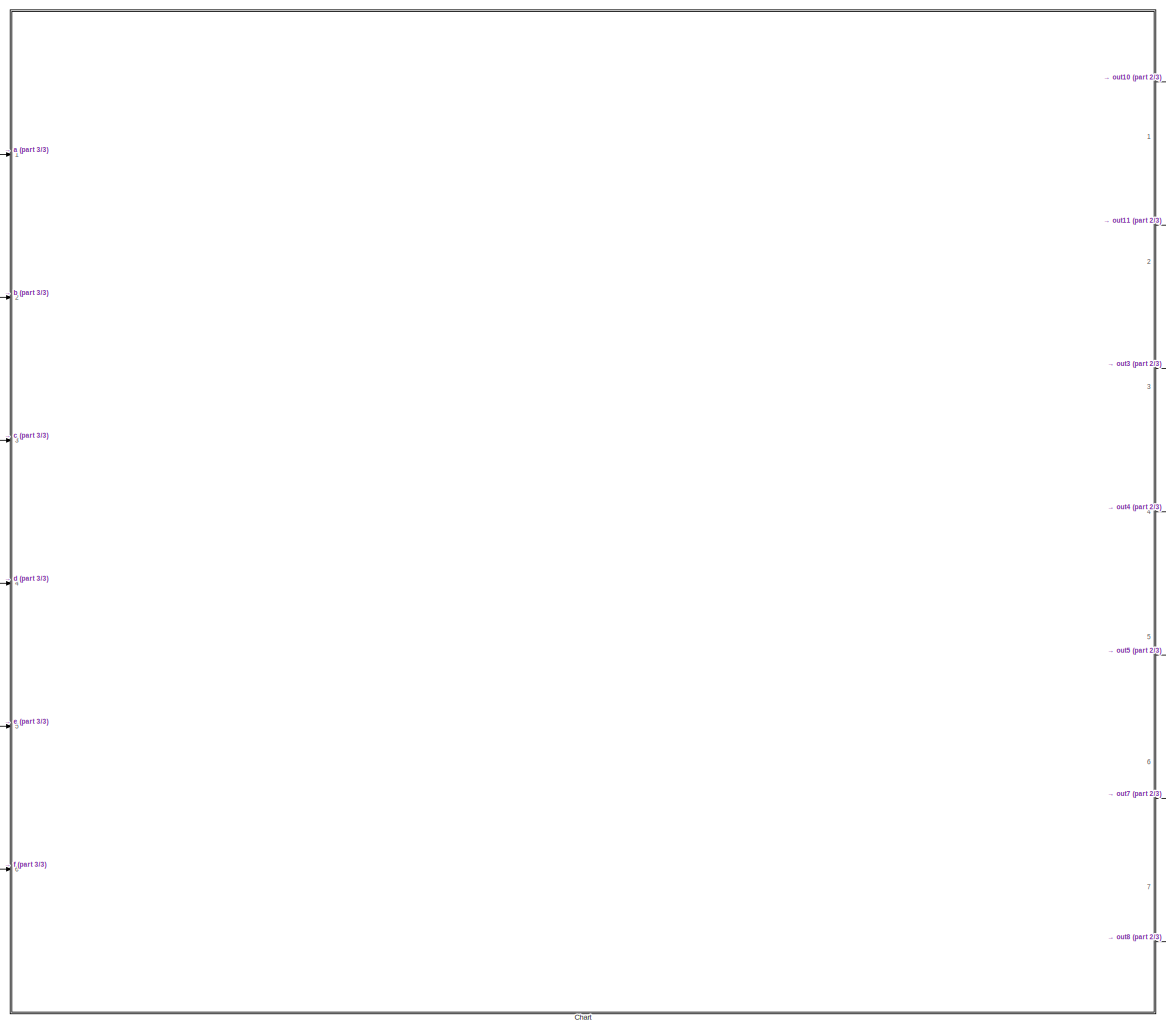
[diagram: root canvas - part 1/3, center side, full height]
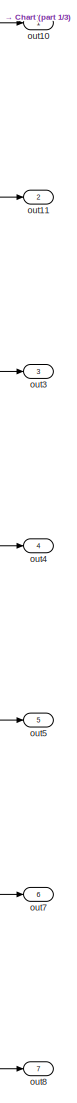
[diagram: root canvas - part 2/3, right side, full height]
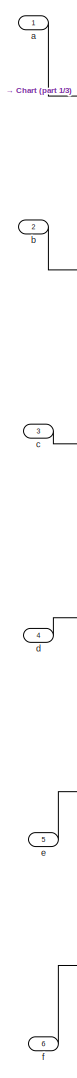
[diagram: root canvas - part 3/3, left side, full height]
MODEL slx_9acb01de9830
KIND model
CONFIG AbsTol = auto
CONFIG EnableMultiTasking = off
CONFIG FixedStep = 0.1
CONFIG MaxStep = auto
CONFIG MinStep = auto
CONFIG RelTol = 1e-3
CONFIG SampleTimeConstraint = Unconstrained
CONFIG SolverName = FixedStepDiscrete
CONFIG StartTime = 0.0
CONFIG StopTime = inf
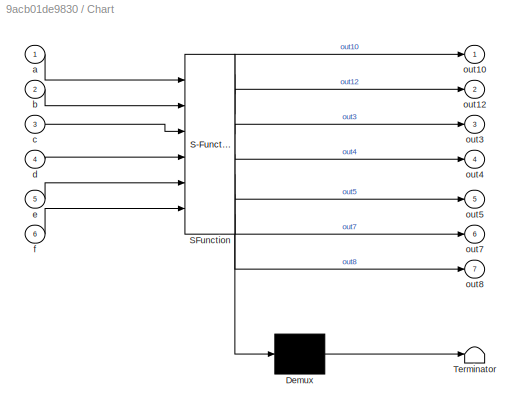
BLOCK [SubSystem] Chart
  ErrorFcn = Stateflow.Translate.translate
  PermitHierarchicalResolution = ExplicitOnly
  Ports = [6, 7]
  RequestExecContextInheritance = off
  SFBlockType = Chart
  TreatAsAtomicUnit = on
BLOCK [Demux] Chart/ Demux 
  Outputs = 1
  Ports = [1, 1]
BLOCK [S-Function] Chart/ SFunction 
  EnableBusSupport = on
  FunctionName = sf_sfun
  PortCounts = [6 8]
  Ports = [6, 8]
  SFcnIsStateOwnerBlock = off
  SFunctionDeploymentMode = off
  Tag = Stateflow S-Function 3
BLOCK [Terminator] Chart/ Terminator 
BLOCK [Inport] Chart/a
BLOCK [Inport] Chart/b
  Port = 2
BLOCK [Inport] Chart/c
  Port = 3
BLOCK [Inport] Chart/d
  Port = 4
BLOCK [Inport] Chart/e
  Port = 5
BLOCK [Inport] Chart/f
  Port = 6
BLOCK [Outport] Chart/out10
BLOCK [Outport] Chart/out12
  Port = 2
BLOCK [Outport] Chart/out3
  Port = 3
BLOCK [Outport] Chart/out4
  Port = 4
BLOCK [Outport] Chart/out5
  Port = 5
BLOCK [Outport] Chart/out7
  Port = 6
BLOCK [Outport] Chart/out8
  Port = 7
BLOCK [Inport] a
BLOCK [Inport] b
  Port = 2
BLOCK [Inport] c
  Port = 3
BLOCK [Inport] d
  Port = 4
BLOCK [Inport] e
  Port = 5
BLOCK [Inport] f
  Port = 6
BLOCK [Outport] out10
BLOCK [Outport] out11
  Port = 2
BLOCK [Outport] out3
  Port = 3
BLOCK [Outport] out4
  Port = 4
BLOCK [Outport] out5
  Port = 5
BLOCK [Outport] out7
  Port = 6
BLOCK [Outport] out8
  Port = 7
LINE Chart:1 -> out10:1
LINE Chart:2 -> out11:1
LINE Chart:3 -> out3:1
LINE Chart:4 -> out4:1
LINE Chart:5 -> out5:1
LINE Chart:6 -> out7:1
LINE Chart:7 -> out8:1
LINE a:1 -> Chart:1
LINE b:1 -> Chart:2
LINE c:1 -> Chart:3
LINE d:1 -> Chart:4
LINE e:1 -> Chart:5
LINE f:1 -> Chart:6
CHART Chart states=16 transitions=20
  STATE_LABEL 'state2'
  STATE_LABEL 'state6'
  STATE_LABEL 'd'
  STATE_LABEL 'state8\nentry:\n  out8=1;\nduring:\n  out8 = 1;\nexit:\n  out8 = 0;'
  STATE_LABEL 'state9'
  STATE_LABEL '[a==1]'
  STATE_LABEL '[b==1]'
  STATE_LABEL 'e'
  STATE_LABEL 'state10\nentry:\n  out10=1;\nduring:\n  out10 = 1;\nexit:\n  out10 = 0;'
  STATE_LABEL 'state11'
  STATE_LABEL '[c==1]'
  STATE_LABEL '[c==1]'
  STATE_LABEL 'f'
  STATE_LABEL 'state12\nentry:\n  out12=1;\nduring:\n  out12 = 1;\nexit:\n  out12 = 0;'
  STATE_LABEL 'state13'
  STATE_LABEL '[c==1]'
  STATE_LABEL '[a==1]'
  STATE_LABEL 'state7\nentry:\n  out7=1;\nduring:\n  out7 = 1;\nexit:\n  out7 = 0;'
  STATE_LABEL '[e==1]'
  STATE_LABEL '[d==1]'
  STATE_LABEL 'state6'
  STATE_LABEL 'd'
  STATE_LABEL 'state8\nentry:\n  out8=1;\nduring:\n  out8 = 1;\nexit:\n  out8 = 0;'
  STATE_LABEL 'state9'
  STATE_LABEL '[a==1]'
  STATE_LABEL '[b==1]'
  STATE_LABEL 'e'
  STATE_LABEL 'state10\nentry:\n  out10=1;\nduring:\n  out10 = 1;\nexit:\n  out10 = 0;'
  STATE_LABEL 'state11'
  STATE_LABEL '[c==1]'
  STATE_LABEL '[c==1]'
  STATE_LABEL 'f'
  STATE_LABEL 'state12\nentry:\n  out12=1;\nduring:\n  out12 = 1;\nexit:\n  out12 = 0;'
  STATE_LABEL 'state13'
  STATE_LABEL '[c==1]'
  STATE_LABEL '[a==1]'
  STATE_LABEL 'd'
  STATE_LABEL 'state8\nentry:\n  out8=1;\nduring:\n  out8 = 1;\nexit:\n  out8 = 0;'
  STATE_LABEL 'state9'
  STATE_LABEL '[a==1]'
CHART  states=0 transitions=0
